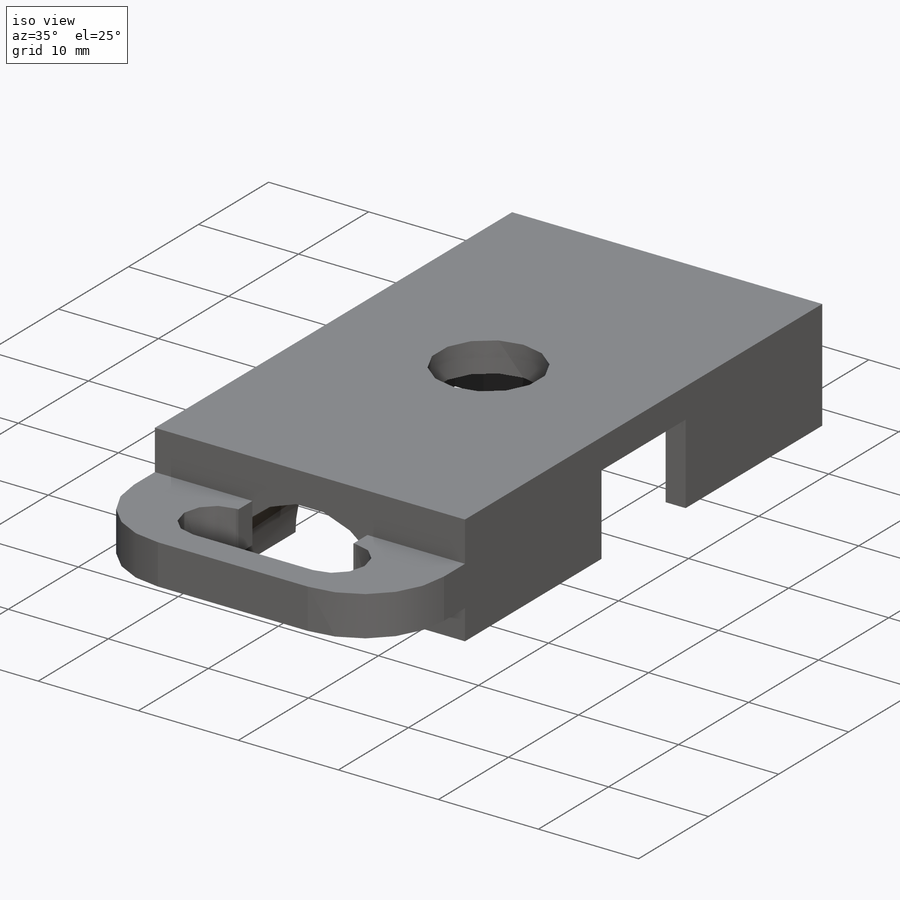
[diagram: iso view]
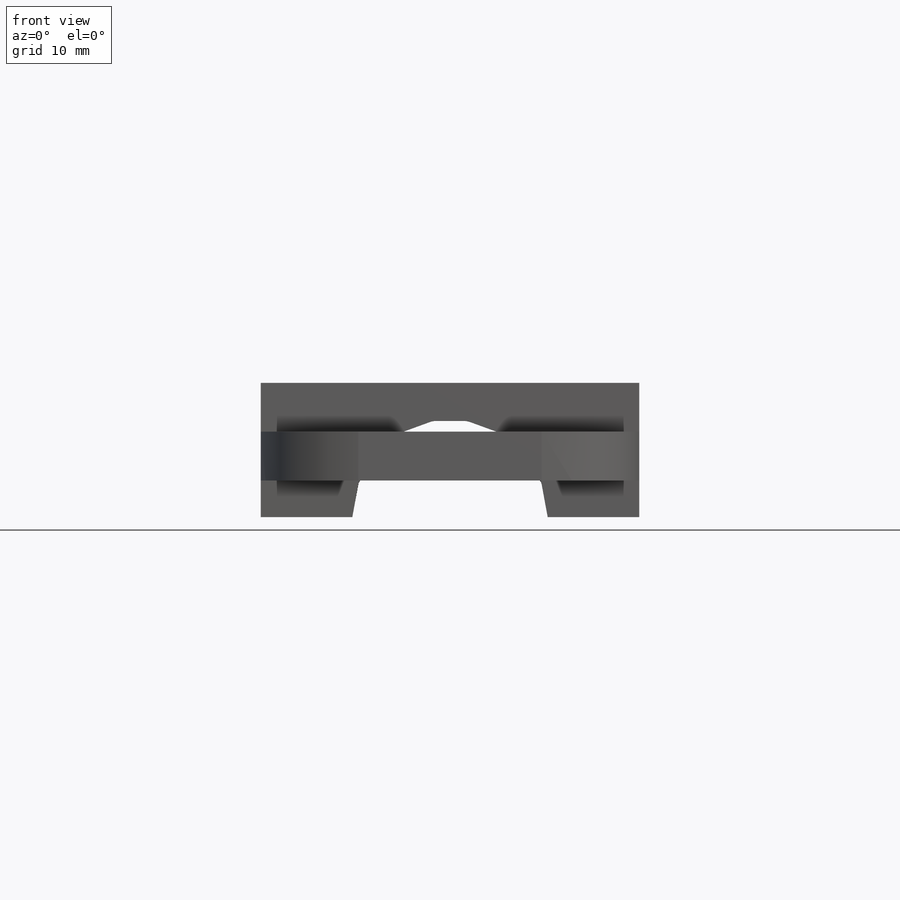
[diagram: front view]
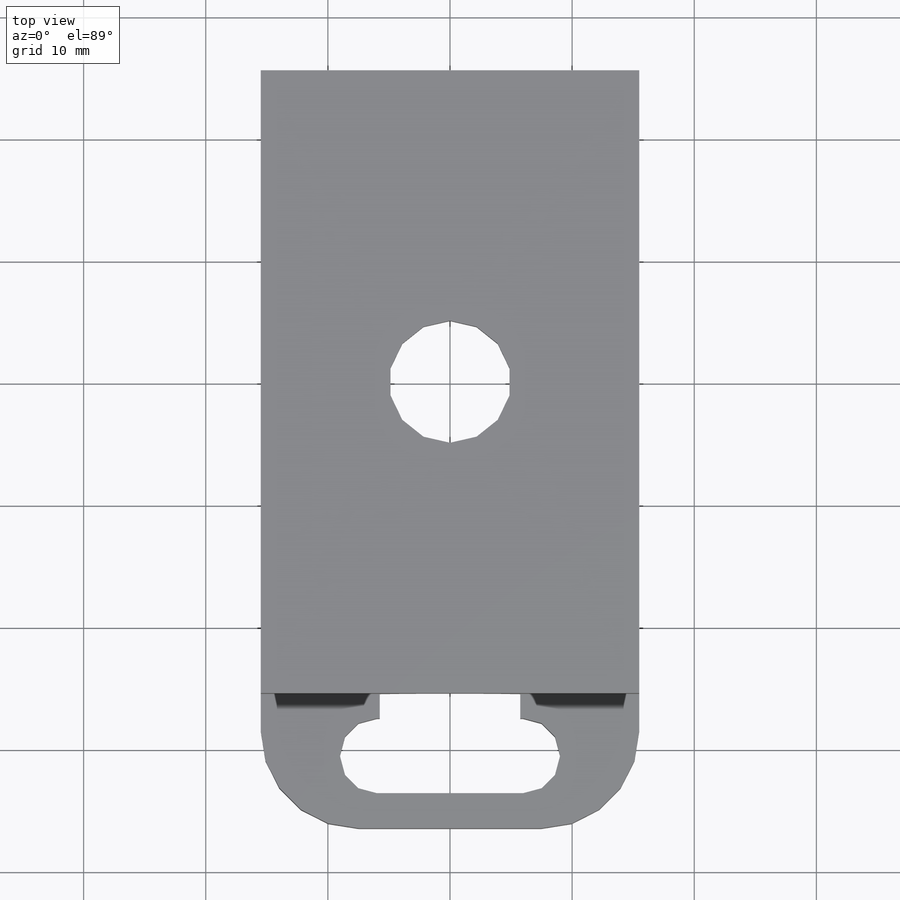
[diagram: top view]
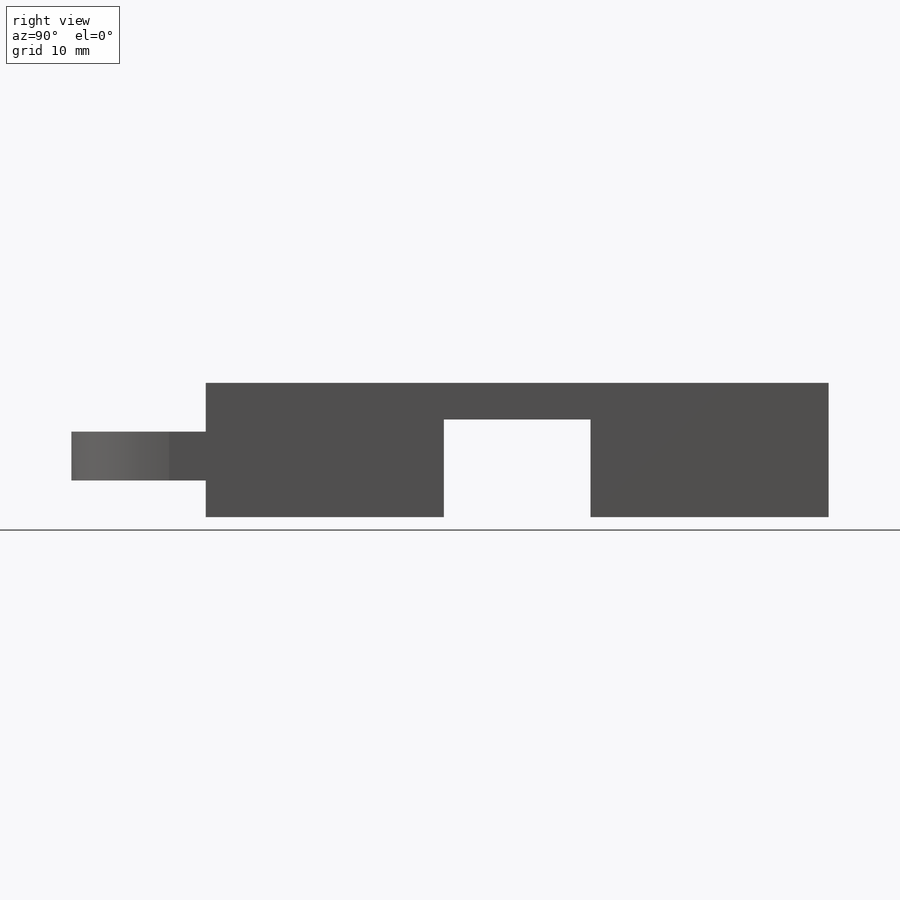
[diagram: right view]
SOLIDWORKS PART (.sldprt)
format: sldprt  version: not decoded by parser v0  size: 360,960 bytes
history: native  units: mm
features: sketch x5, plane x3, cut_extrude x3, extrude x2, material x1 + 1 further entry (+9 scaffold rows collapsed)
feature tree (24):
  scaffold x9  (default folders/planes/origin — collapsed)
  material  "Калифорния"
  "Примечания"  RD1=11.0001mm RD2=51mm RD3=31mm RD4=8mm RD5=2mm RD6=8mm
  plane  "Спереди"
  plane  "Сверху"
  plane  "Справа"
  sketch  "Эскиз1"  dims[D1=31.0mm]
  extrude  "Бобышка-Вытянуть1"  Depth=0.0001mm
  sketch  "Эскиз2"  dims[D1=29.0mm]
  cut_extrude  "Вырез-Вытянуть1"  Depth=8mm
  sketch  "Эскиз3"
  cut_extrude  "Вырез-Вытянуть3"  Depth=12mm
  sketch  "Эскиз4"  dims[D1=~6.681173mm]
  cut_extrude  "Вырез-Вытянуть4"  Depth=102mm
  sketch  "Трехмерный эскиз1"  dims[c1.D2=8.0mm c1.D3=3.0mm c1.D1=4.0mm c2.D2=31.0mm c3.D2=11.0mm c3.D3=5.75mm c4.D3=5.75mm c5.D3=2.0mm]
  extrude  "Бобышка-Вытянуть2"  Depth=4mm
decode coverage: 9 of 10 modeling features carry decoded parameters; 1 rows unclassified (native names shown)
note: ~ marks probable driven/reference dimensions
note: suppression state not decoded; provenance and decode notes live in map.json
